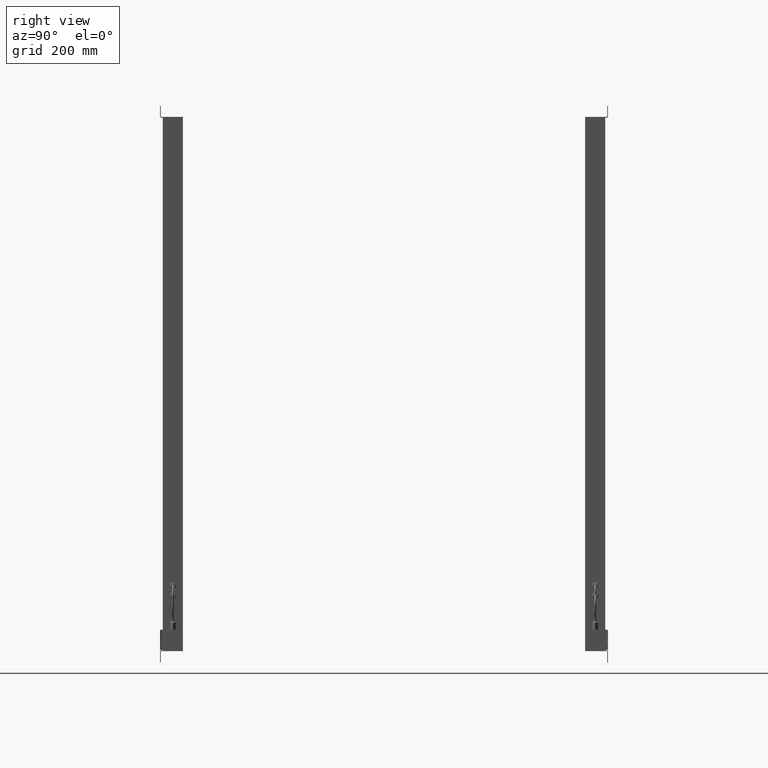
[diagram: clean part render]
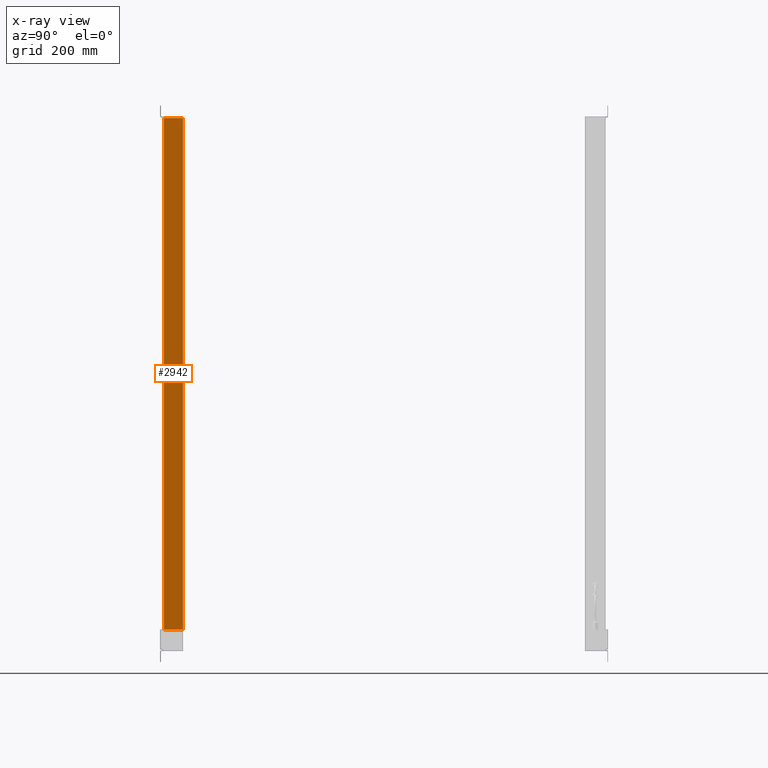
[diagram: x-ray — body ghosted, one internal face saturated and labeled with its STEP entity id]
A machine part, right view, then the same camera in x-ray: the body is ghosted and one INTERNAL B-rep face — a face not visible from any outside direction — is saturated and labeled: STEP entity #2942.
In plain terms, the highlighted planar face has unit normal (-1, 0, 0).
Its self-contained STEP definition (entity closure, byte-faithful):
#2890=CARTESIAN_POINT('Vertex',(47.5,50.,0.)) ;
#2893=CARTESIAN_POINT('Line Origine',(47.5,50.,636.)) ;
#2897=CARTESIAN_POINT('Vertex',(47.5,50.,1272.)) ;
#2912=CARTESIAN_POINT('Axis2P3D Location',(47.5,50.,0.)) ;
#2917=CARTESIAN_POINT('Line Origine',(47.5,26.25,0.)) ;
#2921=CARTESIAN_POINT('Vertex',(47.5,2.5,0.)) ;
#2924=CARTESIAN_POINT('Line Origine',(47.5,2.5,636.)) ;
#2928=CARTESIAN_POINT('Vertex',(47.5,2.5,1272.)) ;
#2931=CARTESIAN_POINT('Line Origine',(47.5,26.25,1272.)) ;
#2894=DIRECTION('Vector Direction',(0.,0.,1.)) ;
#2913=DIRECTION('Axis2P3D Direction',(-1.,0.,0.)) ;
#2914=DIRECTION('Axis2P3D XDirection',(0.,-1.,0.)) ;
#2918=DIRECTION('Vector Direction',(0.,-1.,0.)) ;
#2925=DIRECTION('Vector Direction',(0.,0.,1.)) ;
#2932=DIRECTION('Vector Direction',(0.,-1.,0.)) ;
#2915=AXIS2_PLACEMENT_3D('Plane Axis2P3D',#2912,#2913,#2914) ;
#2937=ORIENTED_EDGE('',*,*,#2899,.F.) ;
#2938=ORIENTED_EDGE('',*,*,#2923,.T.) ;
#2939=ORIENTED_EDGE('',*,*,#2930,.T.) ;
#2940=ORIENTED_EDGE('',*,*,#2935,.F.) ;
#2895=VECTOR('Line Direction',#2894,1.) ;
#2919=VECTOR('Line Direction',#2918,1.) ;
#2926=VECTOR('Line Direction',#2925,1.) ;
#2933=VECTOR('Line Direction',#2932,1.) ;
#2942=ADVANCED_FACE('PartBody',(#2941),#2916,.T.) ;
#2899=EDGE_CURVE('',#2891,#2898,#2896,.T.) ;
#2923=EDGE_CURVE('',#2891,#2922,#2920,.T.) ;
#2930=EDGE_CURVE('',#2922,#2929,#2927,.T.) ;
#2935=EDGE_CURVE('',#2898,#2929,#2934,.T.) ;
#2936=EDGE_LOOP('',(#2937,#2938,#2939,#2940)) ;
#2941=FACE_OUTER_BOUND('',#2936,.T.) ;
#2896=LINE('Line',#2893,#2895) ;
#2920=LINE('Line',#2917,#2919) ;
#2927=LINE('Line',#2924,#2926) ;
#2934=LINE('Line',#2931,#2933) ;
#2916=PLANE('Plane',#2915) ;
#2891=VERTEX_POINT('',#2890) ;
#2898=VERTEX_POINT('',#2897) ;
#2922=VERTEX_POINT('',#2921) ;
#2929=VERTEX_POINT('',#2928) ;